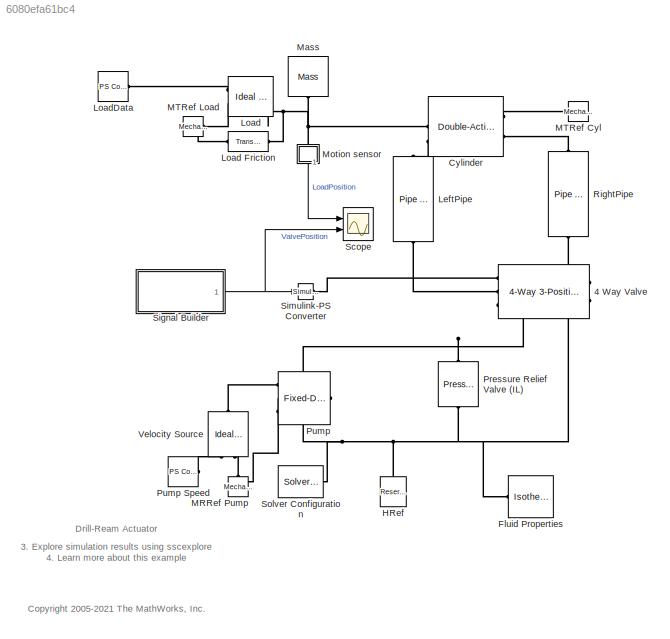
MODEL slx_6080efa61bc4
KIND model
CONFIG AbsTol = 1e-3
CONFIG EnableMultiTasking = on
CONFIG FixedStep = auto
CONFIG MaxStep = auto
CONFIG MinStep = auto
CONFIG RelTol = 1e-3
CONFIG SampleTimeConstraint = Unconstrained
CONFIG SolverName = VariableStepAuto
CONFIG StartTime = 0.0
CONFIG StopTime = 10
WORKSPACE source: mxarray member
WORKSPACE Ts: Simulink.Parameter (value not decoded)
BLOCK [Reference] 4 Way Valve  REF=SimscapeFluids_lib/Isothermal Liquid/Valves & Orifices/Directional Control
Valves/4-Way 3-Position
Directional Valve
(IL)
  NameLocation = right
  Ports = [0, 0, 0, 0, 0, 3, 2]
  SourceBlock = SimscapeFluids_lib/Isothermal Liquid/Valves & Orifices/Directional Control\nValves/4-Way 3-Position\nDirectional Valve\n(IL)
  SourceProductBaseCode = SH
  SourceType = 4-Way 3-Position\nDirectional Valve\n(IL)
  Tag = Factory Generic
BLOCK [Reference] Cylinder  REF=SimscapeFluids_lib/Isothermal Liquid/Actuators/Double-Acting
Actuator (IL)
  NameLocation = top
  Ports = [0, 0, 0, 0, 0, 2, 3]
  SourceBlock = SimscapeFluids_lib/Isothermal Liquid/Actuators/Double-Acting\nActuator (IL)
  SourceProductBaseCode = SH
  SourceType = Double-Acting\nActuator (IL)
  Tag = Factory Generic
BLOCK [Reference] Fluid Properties  REF=fl_lib/Isothermal Liquid/Utilities/Isothermal Liquid
Properties (IL)
  Ports = [0, 0, 0, 0, 0, 0, 1]
  SourceBlock = fl_lib/Isothermal Liquid/Utilities/Isothermal Liquid\nProperties (IL)
  SourceProductBaseCode = PW,SS,VE
  SourceType = Isothermal Liquid\nProperties (IL)
  Tag = Factory Generic
BLOCK [Reference] HRef  REF=fl_lib/Isothermal Liquid/Elements/Reservoir (IL)
  NameLocation = right
  Ports = [0, 0, 0, 0, 0, 1]
  SourceBlock = fl_lib/Isothermal Liquid/Elements/Reservoir (IL)
  SourceProductBaseCode = PW,SS,VE
  SourceType = Reservoir (IL)
  Tag = Factory Generic
BLOCK [Reference] LeftPipe  REF=SimscapeFluids_lib/Isothermal Liquid/Pipes & Fittings/Pipe (IL)
  NameLocation = left
  Ports = [0, 0, 0, 0, 0, 1, 1]
  SourceBlock = SimscapeFluids_lib/Isothermal Liquid/Pipes & Fittings/Pipe (IL)
  SourceProductBaseCode = SH
  SourceType = Pipe (IL)
  Tag = Factory Generic
BLOCK [Reference] Load  REF=fl_lib/Mechanical/Mechanical Sources/Ideal Force Source
  NameLocation = top
  Ports = [0, 0, 0, 0, 0, 1, 2]
  SourceBlock = fl_lib/Mechanical/Mechanical Sources/Ideal Force Source
  SourceProductBaseCode = PW,SS,VE
  SourceType = Ideal Force Source
  Tag = Factory Generic
BLOCK [Reference] Load Friction  REF=fl_lib/Mechanical/Translational
Elements/Translational
Friction
  Ports = [0, 0, 0, 0, 0, 1, 1]
  SourceBlock = fl_lib/Mechanical/Translational\nElements/Translational\nFriction
  SourceProductBaseCode = PW,SS,VE
  SourceType = Translational\nFriction
  Tag = Factory Generic
BLOCK [Reference] LoadData  REF=fl_lib/Physical Signals/Sources/PS Constant
  Ports = [0, 0, 0, 0, 0, 0, 1]
  SourceBlock = fl_lib/Physical Signals/Sources/PS Constant
  SourceProductBaseCode = PW,SS,VE
  SourceType = PS Constant
BLOCK [Reference] MRRef Pump  REF=fl_lib/Mechanical/Rotational Elements/Mechanical
Rotational Reference
  NameLocation = right
  Ports = [0, 0, 0, 0, 0, 1]
  SourceBlock = fl_lib/Mechanical/Rotational Elements/Mechanical\nRotational Reference
  SourceProductBaseCode = PW,SS,VE
  SourceType = Mechanical\nRotational Reference
  Tag = Factory Generic
BLOCK [Reference] MTRef Cyl  REF=fl_lib/Mechanical/Translational
Elements/Mechanical
Translational
Reference
  NameLocation = top
  Ports = [0, 0, 0, 0, 0, 1]
  SourceBlock = fl_lib/Mechanical/Translational\nElements/Mechanical\nTranslational\nReference
  SourceProductBaseCode = PW,SS,VE
  SourceType = Mechanical\nTranslational\nReference
  Tag = Factory Generic
BLOCK [Reference] MTRef Load  REF=fl_lib/Mechanical/Translational
Elements/Mechanical
Translational
Reference
  Ports = [0, 0, 0, 0, 0, 1]
  SourceBlock = fl_lib/Mechanical/Translational\nElements/Mechanical\nTranslational\nReference
  SourceProductBaseCode = PW,SS,VE
  SourceType = Mechanical\nTranslational\nReference
  Tag = Factory Generic
BLOCK [Reference] Mass  REF=fl_lib/Mechanical/Translational
Elements/Mass
  NameLocation = right
  Ports = [0, 0, 0, 0, 0, 1]
  SourceBlock = fl_lib/Mechanical/Translational\nElements/Mass
  SourceProductBaseCode = PW,SS,VE
  SourceType = Mass
  Tag = Factory Generic
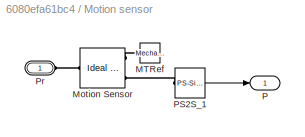
BLOCK [SubSystem] Motion sensor
  NameLocation = left
  Ports = [0, 1, 0, 0, 0, 1]
  RequestExecContextInheritance = off
BLOCK [Reference] Motion sensor/MTRef  REF=fl_lib/Mechanical/Translational
Elements/Mechanical
Translational
Reference
  NameLocation = top
  Ports = [0, 0, 0, 0, 0, 1]
  SourceBlock = fl_lib/Mechanical/Translational\nElements/Mechanical\nTranslational\nReference
  SourceProductBaseCode = PW,SS,VE
  SourceType = Mechanical\nTranslational\nReference
  Tag = Factory Generic
BLOCK [Reference] Motion sensor/Motion Sensor  REF=fl_lib/Mechanical/Mechanical Sensors/Ideal Translational
Motion Sensor
  Ports = [0, 0, 0, 0, 0, 1, 3]
  SourceBlock = fl_lib/Mechanical/Mechanical Sensors/Ideal Translational\nMotion Sensor
  SourceProductBaseCode = PW,SS,VE
  SourceType = Ideal Translational\nMotion Sensor
  Tag = Factory Generic
BLOCK [Outport] Motion sensor/P
  VectorParamsAs1DForOutWhenUnconnected = off
BLOCK [Reference] Motion sensor/PS2S_1  REF=nesl_utility/PS-Simulink
Converter
  Ports = [0, 1, 0, 0, 0, 1]
  SourceBlock = nesl_utility/PS-Simulink\nConverter
  SourceProductBaseCode = SS,PW,VE
  SourceType = PS-Simulink\nConverter
BLOCK [PMIOPort] Motion sensor/Pr
  Side = Left
BLOCK [Reference] Pressure Relief Valve (IL)  REF=SimscapeFluids_lib/Isothermal Liquid/Valves & Orifices/Pressure Control
Valves/Pressure Relief
Valve (IL)
  NameLocation = right
  Ports = [0, 0, 0, 0, 0, 1, 1]
  SourceBlock = SimscapeFluids_lib/Isothermal Liquid/Valves & Orifices/Pressure Control\nValves/Pressure Relief\nValve (IL)
  SourceProductBaseCode = SH
  SourceType = Pressure Relief\nValve (IL)
  Tag = Factory Generic
BLOCK [Reference] Pump  REF=SimscapeFluids_lib/Isothermal Liquid/Pumps & Motors/Fixed-Displacement
Pump (IL)
  NameLocation = right
  Ports = [0, 0, 0, 0, 0, 1, 3]
  SourceBlock = SimscapeFluids_lib/Isothermal Liquid/Pumps & Motors/Fixed-Displacement\nPump (IL)
  SourceProductBaseCode = SH
  SourceType = Fixed-Displacement\nPump (IL)
  Tag = Factory Generic
BLOCK [Reference] Pump Speed  REF=fl_lib/Physical Signals/Sources/PS Constant
  Ports = [0, 0, 0, 0, 0, 0, 1]
  SourceBlock = fl_lib/Physical Signals/Sources/PS Constant
  SourceProductBaseCode = PW,SS,VE
  SourceType = PS Constant
BLOCK [Reference] RightPipe  REF=SimscapeFluids_lib/Isothermal Liquid/Pipes & Fittings/Pipe (IL)
  NameLocation = left
  Ports = [0, 0, 0, 0, 0, 1, 1]
  SourceBlock = SimscapeFluids_lib/Isothermal Liquid/Pipes & Fittings/Pipe (IL)
  SourceProductBaseCode = SH
  SourceType = Pipe (IL)
  Tag = Factory Generic
BLOCK [Scope] Scope
  Floating = off
  NumInputPorts = 2
  Ports = [2]
  ScopeSpecificationString = Simulink.scopes.TimeScopeBlockCfg('CurrentConfiguration', extmgr.ConfigurationSet(extmgr.Configuration('Core','General UI',true),extmgr.Configuration('Core','Source UI',true),extmgr.Configuration('Sources','WiredSimulink',true),extmgr.Configuration('Visuals','Time Domain',true,'SerializedDisplays',{struct('MinYLimReal','-0.05454','MaxYLimReal','0.46846','YLabelReal','','MinYLimMag','0.00000','MaxY...<+1976ch>
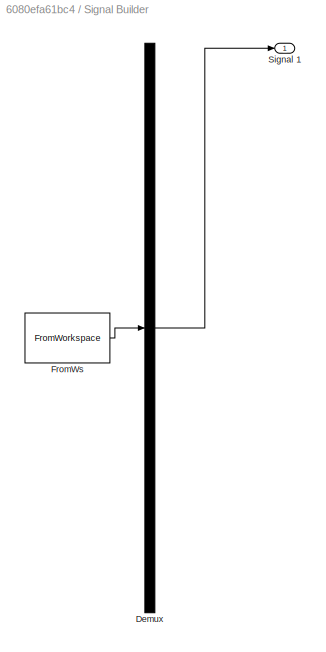
BLOCK [SubSystem] Signal Builder
  ClipboardFcn = sigbuilder_block('clipboard');
  CloseFcn = sigbuilder_block('close');
  ContinueFcn = sigbuilder_block('continue');
  CopyFcn = sigbuilder_block('copy');
  DeleteFcn = sigbuilder_block('delete');
  LoadFcn = sigbuilder_block('load');
  MaskHideContents = on
  ModelCloseFcn = sigbuilder_block('modelClose');
  NameChangeFcn = sigbuilder_block('namechange');
  OpenFcn = sigbuilder_block('open',[47.5 192.5 550.5 400 ]);
  PauseFcn = sigbuilder_block('pause');
  Ports = [0, 1]
  PreSaveFcn = sigbuilder_block('preSave');
  RequestExecContextInheritance = off
  StartFcn = sigbuilder_block('start');
  StopFcn = sigbuilder_block('stop');
  Tag = STV Subsys
BLOCK [Demux] Signal Builder/Demux
  DisplayOption = none
  Outputs = 1
  Ports = [1, 1]
  Tag = STV Demux
BLOCK [FromWorkspace] Signal Builder/FromWs
  Tag = STV FromWs
  VariableName = tuvar
BLOCK [Outport] Signal Builder/Signal 1
  Tag = STV Outport
BLOCK [Reference] Simulink-PS Converter  REF=nesl_utility/Simulink-PS
Converter
  AttributesFormatString = %<Unit>
  Ports = [1, 0, 0, 0, 0, 0, 1]
  SourceBlock = nesl_utility/Simulink-PS\nConverter
  SourceProductBaseCode = SS,PW,VE
  SourceType = Simulink-PS\nConverter
BLOCK [Reference] Solver Configuration  REF=nesl_utility/Solver
Configuration
  NameLocation = top
  Ports = [0, 0, 0, 0, 0, 0, 1]
  SourceBlock = nesl_utility/Solver\nConfiguration
  SourceProductBaseCode = SS,PW,VE
  SourceType = Solver\nConfiguration
BLOCK [Reference] Velocity Source  REF=fl_lib/Mechanical/Mechanical Sources/Ideal Angular
Velocity Source
  NameLocation = left
  Ports = [0, 0, 0, 0, 0, 1, 2]
  SourceBlock = fl_lib/Mechanical/Mechanical Sources/Ideal Angular\nVelocity Source
  SourceProductBaseCode = PW,SS,VE
  SourceType = Ideal Angular\nVelocity Source
  Tag = Factory Generic
ANNOTATION (root): 3. Explore simulation results using sscexplore 4. Learn more about this example
ANNOTATION (root): <copyright redacted>
ANNOTATION (root): Drill-Ream Actuator
LINE Motion sensor/PS2S_1:1 -> Motion sensor/P:1
LINE Motion sensor:1 -> Scope:1
NET Signal Builder:1 -> Scope:2, Simulink-PS Converter:1
PLINE 4 Way Valve:LConn1 -- Simulink-PS Converter:RConn1
PLINE 4 Way Valve:LConn2 -- LeftPipe:LConn1
PLINE 4 Way Valve:LConn3 -- RightPipe:LConn1
PNET net1: 4 Way Valve:RConn1 -- Pressure Relief Valve (IL):LConn1 -- Pump:LConn1
PNET net2: 4 Way Valve:RConn2 -- Fluid Properties:RConn1 -- HRef:LConn1 -- Pressure Relief Valve (IL):RConn1 -- Pump:RConn3 -- Solver Configuration:RConn1
PLINE Cylinder:LConn1 -- MTRef Cyl:LConn1
PLINE Cylinder:LConn2 -- RightPipe:RConn1
PNET net3: Cylinder:RConn2 -- Load Friction:LConn1 -- Load:LConn1 -- Mass:LConn1 -- Motion sensor:LConn1
PLINE Cylinder:RConn3 -- LeftPipe:RConn1
PNET net4: Load Friction:RConn1 -- Load:RConn2 -- MTRef Load:LConn1
PLINE Load:RConn1 -- LoadData:RConn1
PNET net5: MRRef Pump:LConn1 -- Pump:RConn2 -- Velocity Source:RConn2
PLINE Motion sensor/MTRef:LConn1 -- Motion sensor/Motion Sensor:RConn1
PLINE Motion sensor/Motion Sensor:LConn1 -- Motion sensor/Pr:RConn1
PLINE Motion sensor/Motion Sensor:RConn3 -- Motion sensor/PS2S_1:LConn1
PLINE Pump Speed:RConn1 -- Velocity Source:RConn1
PLINE Pump:RConn1 -- Velocity Source:LConn1
note: NET lines group one-source signal fan-out (src -> all destinations, sorted); 1:1 wires keep LINE; PNET lines group multi-terminal physical nets as a canonical sorted terminal list (undirected conserving connections); 2-terminal nets keep the pairwise PLINE form
